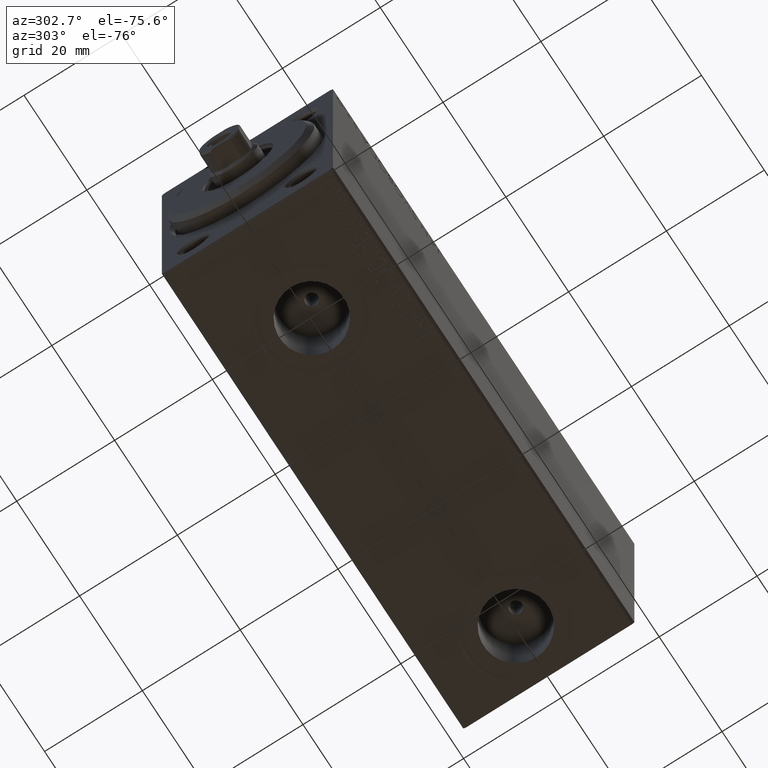
[diagram: clean part render]
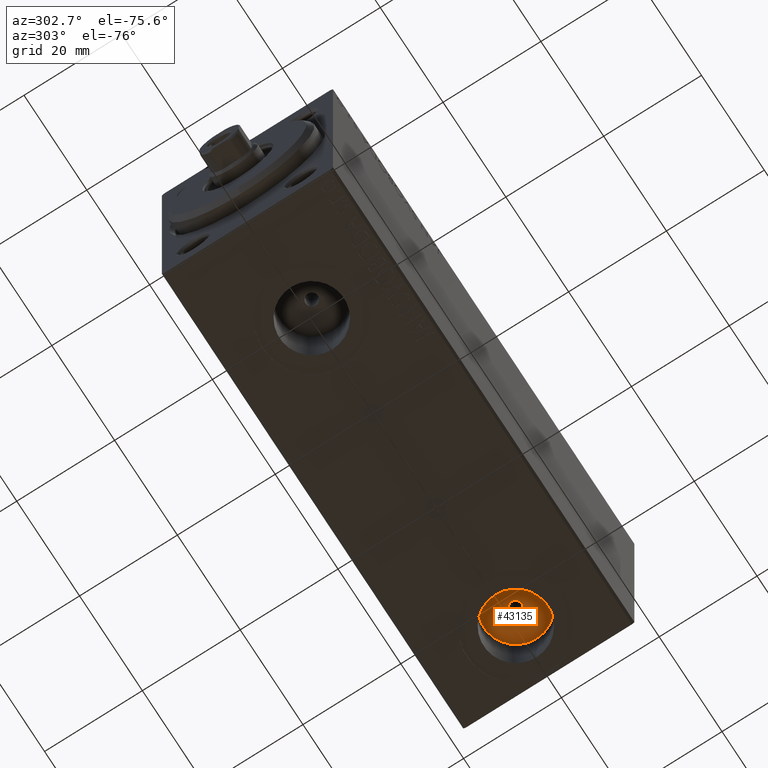
[diagram: same view with one face highlighted and labeled with its STEP entity id]
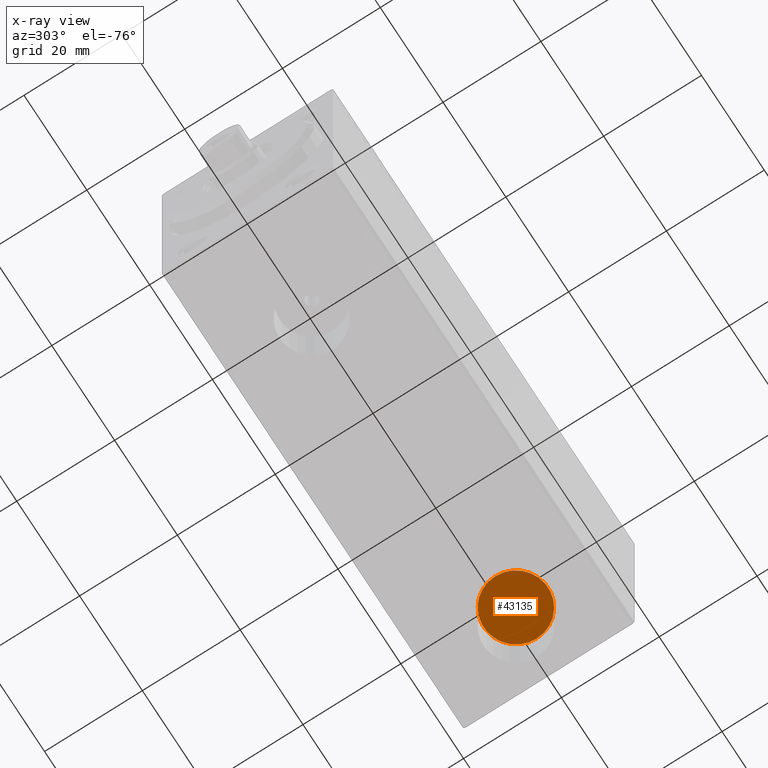
[diagram: x-ray of the same camera — body ghosted, the highlighted face saturated]
A machine part, auxiliary view. The second image highlights one B-rep face of the part: STEP entity #43135.
The next image is the same camera in x-ray: the body ghosted, the highlighted face saturated — about 0% of this face is hidden behind the body in this view.
In plain terms, the highlighted planar face has unit normal (0, 0, -1).
Its self-contained STEP definition (entity closure, byte-faithful):
#792 = AXIS2_PLACEMENT_3D ( 'NONE', #45143, #30663, #37556 ) ;
#1575 = AXIS2_PLACEMENT_3D ( 'NONE', #3047, #37588, #41484 ) ;
#3016 = PLANE ( 'NONE',  #792 ) ;
#3047 = CARTESIAN_POINT ( 'NONE',  ( 85.50000000000001421, -1.313433488953868251E-14, -14.50000000000000711 ) ) ;
#4228 = ORIENTED_EDGE ( 'NONE', *, *, #42078, .F. ) ;
#4257 = VERTEX_POINT ( 'NONE', #24483 ) ;
#6441 = ORIENTED_EDGE ( 'NONE', *, *, #35498, .F. ) ;
#6761 = AXIS2_PLACEMENT_3D ( 'NONE', #38463, #20500, #17712 ) ;
#7322 = FACE_OUTER_BOUND ( 'NONE', #32531, .T. ) ;
#11181 = VERTEX_POINT ( 'NONE', #27831 ) ;
#11396 = CARTESIAN_POINT ( 'NONE',  ( 92.08000000000002672, -1.232851729569972347E-14, -14.50000000000000711 ) ) ;
#13213 = CIRCLE ( 'NONE', #36011, 1.250000000000001110 ) ;
#13591 = FACE_BOUND ( 'NONE', #38996, .T. ) ;
#13741 = VERTEX_POINT ( 'NONE', #11396 ) ;
#14255 = ORIENTED_EDGE ( 'NONE', *, *, #39507, .T. ) ;
#16061 = DIRECTION ( 'NONE',  ( -1.000000000000000000, 0.000000000000000000, 0.000000000000000000 ) ) ;
#17712 = DIRECTION ( 'NONE',  ( -1.000000000000000000, 0.000000000000000000, 0.000000000000000000 ) ) ;
#17985 = CARTESIAN_POINT ( 'NONE',  ( 85.50000000000001421, -1.313433488953868251E-14, -14.50000000000000711 ) ) ;
#20210 = DIRECTION ( 'NONE',  ( 0.000000000000000000, 0.000000000000000000, -1.000000000000000000 ) ) ;
#20500 = DIRECTION ( 'NONE',  ( 0.000000000000000000, 0.000000000000000000, -1.000000000000000000 ) ) ;
#24483 = CARTESIAN_POINT ( 'NONE',  ( 86.75000000000002842, -1.298125403964526358E-14, -14.50000000000000711 ) ) ;
#26560 = CIRCLE ( 'NONE', #1575, 6.580000000000002736 ) ;
#26822 = EDGE_CURVE ( 'NONE', #13741, #11181, #26560, .T. ) ;
#27831 = CARTESIAN_POINT ( 'NONE',  ( 78.92000000000001592, -1.313433488953868251E-14, -14.50000000000000711 ) ) ;
#29279 = DIRECTION ( 'NONE',  ( 0.000000000000000000, 0.000000000000000000, -1.000000000000000000 ) ) ;
#30663 = DIRECTION ( 'NONE',  ( 0.000000000000000000, 0.000000000000000000, -1.000000000000000000 ) ) ;
#32061 = DIRECTION ( 'NONE',  ( -1.000000000000000000, 0.000000000000000000, 0.000000000000000000 ) ) ;
#32531 = EDGE_LOOP ( 'NONE', ( #14255, #33503 ) ) ;
#33503 = ORIENTED_EDGE ( 'NONE', *, *, #26822, .T. ) ;
#34669 = CIRCLE ( 'NONE', #39058, 6.580000000000002736 ) ;
#35498 = EDGE_CURVE ( 'NONE', #41363, #4257, #13213, .T. ) ;
#36011 = AXIS2_PLACEMENT_3D ( 'NONE', #41167, #20210, #16061 ) ;
#37556 = DIRECTION ( 'NONE',  ( -1.000000000000000000, 0.000000000000000000, -0.000000000000000000 ) ) ;
#37588 = DIRECTION ( 'NONE',  ( 0.000000000000000000, 0.000000000000000000, -1.000000000000000000 ) ) ;
#38067 = CARTESIAN_POINT ( 'NONE',  ( 84.25000000000001421, -1.313433488953868251E-14, -14.50000000000000711 ) ) ;
#38463 = CARTESIAN_POINT ( 'NONE',  ( 85.50000000000001421, -1.313433488953868251E-14, -14.50000000000000711 ) ) ;
#38996 = EDGE_LOOP ( 'NONE', ( #6441, #4228 ) ) ;
#39058 = AXIS2_PLACEMENT_3D ( 'NONE', #17985, #29279, #32061 ) ;
#39507 = EDGE_CURVE ( 'NONE', #11181, #13741, #34669, .T. ) ;
#41167 = CARTESIAN_POINT ( 'NONE',  ( 85.50000000000001421, -1.313433488953868251E-14, -14.50000000000000711 ) ) ;
#41363 = VERTEX_POINT ( 'NONE', #38067 ) ;
#41484 = DIRECTION ( 'NONE',  ( -1.000000000000000000, 0.000000000000000000, 0.000000000000000000 ) ) ;
#42038 = CIRCLE ( 'NONE', #6761, 1.250000000000001110 ) ;
#42078 = EDGE_CURVE ( 'NONE', #4257, #41363, #42038, .T. ) ;
#43135 = ADVANCED_FACE ( 'NONE', ( #13591, #7322 ), #3016, .T. ) ;
#45143 = CARTESIAN_POINT ( 'NONE',  ( 0.000000000000000000, 0.000000000000000000, -14.50000000000000711 ) ) ;